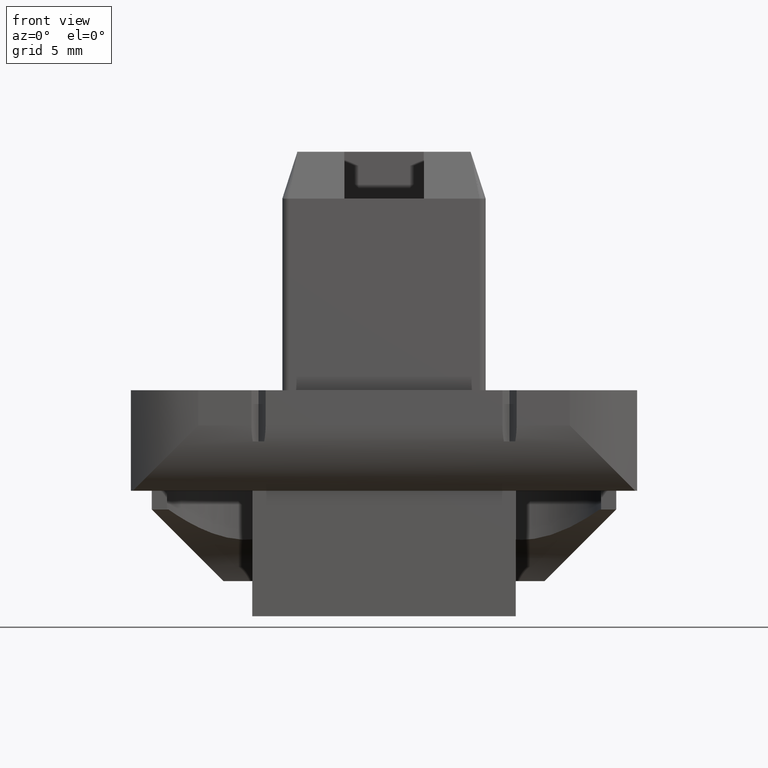
[diagram: clean part render]
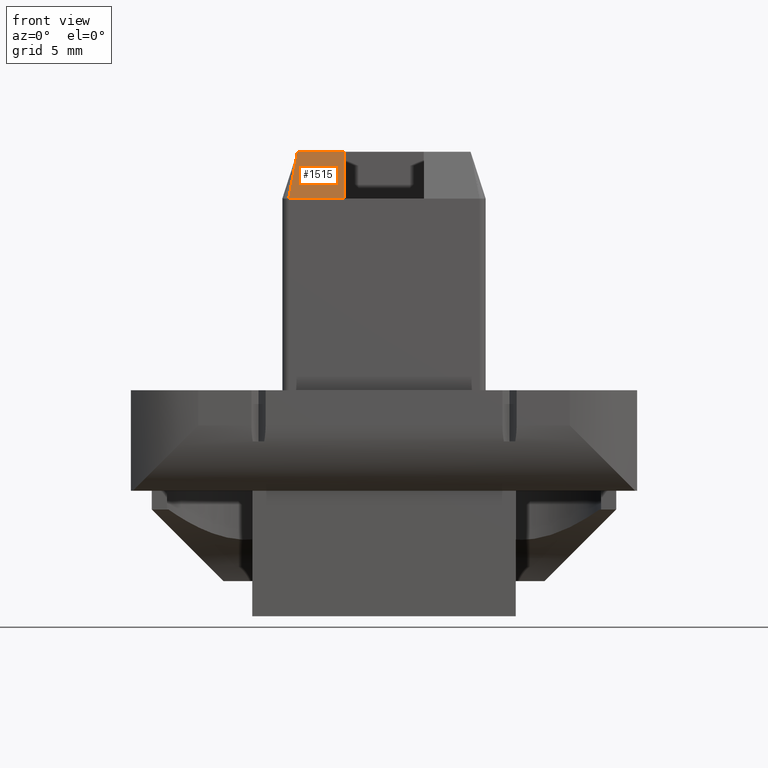
[diagram: same view with one face highlighted and labeled with its STEP entity id]
A machine part, front view. The second image highlights one B-rep face of the part: STEP entity #1515.
In plain terms, the highlighted face is a freeform B-spline surface patch.
Its self-contained STEP definition (entity closure, byte-faithful):
#1235=CARTESIAN_POINT('',(-6.899999952315739,-2.899998997362396,36.999993470847812));
#1236=VERTEX_POINT('',#1235);
#1243=CARTESIAN_POINT('',(-3.167017524423500,-2.899998997362396,36.999993470847699));
#1244=VERTEX_POINT('',#1243);
#1245=CARTESIAN_POINT('',(-6.899999952315739,-2.899998997362396,36.999993470847699));
#1246=DIRECTION('',(1.0,0.0,0.0));
#1247=VECTOR('',#1246,3.732982427892239);
#1248=LINE('',#1245,#1247);
#1249=EDGE_CURVE('',#1236,#1244,#1248,.T.);
#1331=CARTESIAN_POINT('',(-3.167017524423500,-4.099999141368570,33.267949176945422));
#1332=VERTEX_POINT('',#1331);
#1339=CARTESIAN_POINT('',(-7.599999999999454,-4.099999141369214,33.267949419652496));
#1340=VERTEX_POINT('',#1339);
#1341=CARTESIAN_POINT('',(-7.599999999999454,-4.099999141368564,33.267949419652496));
#1342=DIRECTION('',(1.0,0.0,0.0));
#1343=VECTOR('',#1342,4.432982475575955);
#1344=LINE('',#1341,#1343);
#1345=EDGE_CURVE('',#1340,#1332,#1344,.T.);
#1483=CARTESIAN_POINT('',(-7.599999999999454,-4.099999141368564,33.267949419652496));
#1484=CARTESIAN_POINT('',(-7.599999999999454,-3.699999093366508,34.511964103384230));
#1485=CARTESIAN_POINT('',(-7.599999999999454,-3.299999045364452,35.755978787115964));
#1486=CARTESIAN_POINT('',(-7.599999999999454,-2.899998997362396,36.999993470847699));
#1487=CARTESIAN_POINT('',(-6.122317765712918,-4.099999141368564,33.267949419652496));
#1488=CARTESIAN_POINT('',(-6.122317765712918,-3.699999093366508,34.511964103384230));
#1489=CARTESIAN_POINT('',(-6.122317765712918,-3.299999045364452,35.755978787115964));
#1490=CARTESIAN_POINT('',(-6.122317765712918,-2.899998997362396,36.999993470847699));
#1491=CARTESIAN_POINT('',(-4.644635531426381,-4.099999141368563,33.267949419652496));
#1492=CARTESIAN_POINT('',(-4.644635531426381,-3.699999093366508,34.511964103384230));
#1493=CARTESIAN_POINT('',(-4.644635531426381,-3.299999045364451,35.755978787115964));
#1494=CARTESIAN_POINT('',(-4.644635531426381,-2.899998997362396,36.999993470847699));
#1495=CARTESIAN_POINT('',(-3.166953297139844,-4.099999141368563,33.267949419652496));
#1496=CARTESIAN_POINT('',(-3.166953297139844,-3.699999093366507,34.511964103384230));
#1497=CARTESIAN_POINT('',(-3.166953297139844,-3.299999045364451,35.755978787115964));
#1498=CARTESIAN_POINT('',(-3.166953297139844,-2.899998997362396,36.999993470847699));
#1499=B_SPLINE_SURFACE_WITH_KNOTS('',3,3,((#1483,#1487,#1491,#1495),(#1484,#1488,#1492,#1496),(#1485,#1489,#1493,#1497),(#1486,#1490,#1494,#1498)),.UNSPECIFIED.,.F.,.F.,.U.,(4,4),(4,4),(0.0,3.920223609142254),(0.0,4.433046702859611),.UNSPECIFIED.);
#1500=ORIENTED_EDGE('',*,*,#1345,.T.);
#1501=CARTESIAN_POINT('',(-3.167017524423500,-2.899998997362396,36.999993470847471));
#1502=DIRECTION('',(0.0,-0.306105006479776,-0.951997754728453));
#1503=VECTOR('',#1502,3.920223840198629);
#1504=LINE('',#1501,#1503);
#1505=EDGE_CURVE('',#1244,#1332,#1504,.T.);
#1506=ORIENTED_EDGE('',*,*,#1505,.F.);
#1507=ORIENTED_EDGE('',*,*,#1249,.F.);
#1508=CARTESIAN_POINT('',(-7.599999999999135,-4.099999141368559,33.267949419652510));
#1509=CARTESIAN_POINT('',(-6.899999952315784,-2.899998997362403,36.999993470847677));
#1510=QUASI_UNIFORM_CURVE('',1,(#1508,#1509),.UNSPECIFIED.,.F.,.U.);
#1511=EDGE_CURVE('',#1340,#1236,#1510,.T.);
#1512=ORIENTED_EDGE('',*,*,#1511,.F.);
#1513=EDGE_LOOP('',(#1500,#1506,#1507,#1512));
#1514=FACE_OUTER_BOUND('',#1513,.T.);
#1515=ADVANCED_FACE('',(#1514),#1499,.F.);